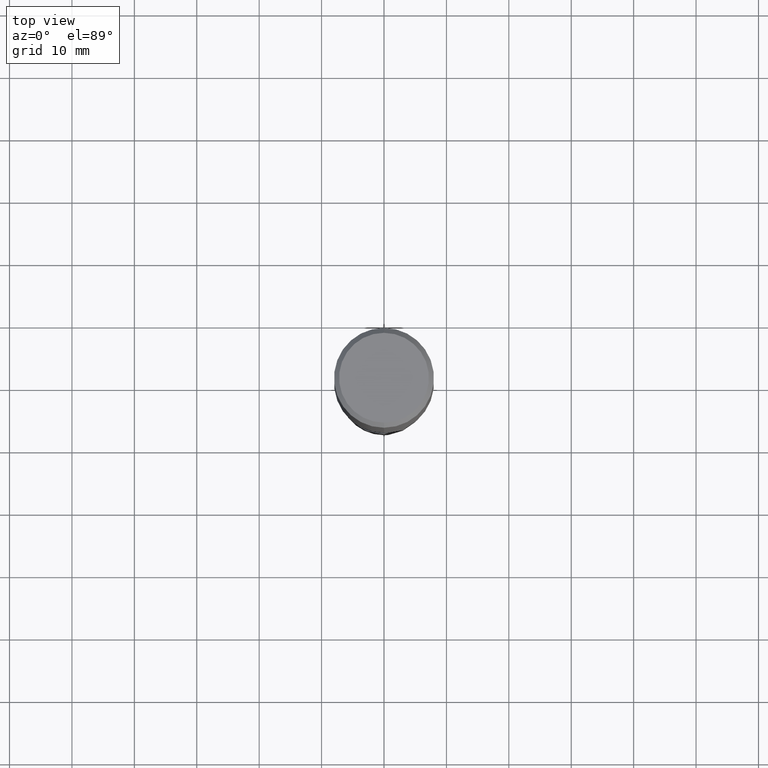
[diagram: clean part render]
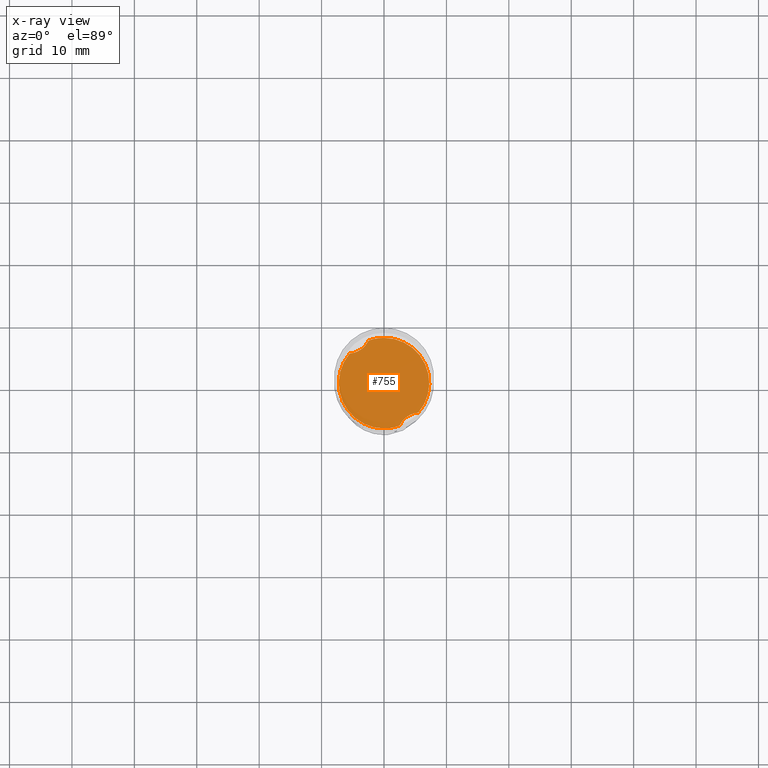
[diagram: x-ray — body ghosted, one internal face saturated and labeled with its STEP entity id]
A machine part, top view, then the same camera in x-ray: the body is ghosted and one INTERNAL B-rep face — a face not visible from any outside direction — is saturated and labeled: STEP entity #755.
In plain terms, the highlighted planar face has unit normal (-0, 0, 1).
Its self-contained STEP definition (entity closure, byte-faithful):
#291=EDGE_CURVE('',#661,#351,#822,.T.);
#351=VERTEX_POINT('',#890);
#367=EDGE_CURVE('',#541,#445,#907,.T.);
#445=VERTEX_POINT('',#994);
#515=EDGE_CURVE('',#547,#541,#1066,.T.);
#541=VERTEX_POINT('',#1092);
#547=VERTEX_POINT('',#1098);
#581=EDGE_CURVE('',#351,#585,#1134,.T.);
#585=VERTEX_POINT('',#1139);
#661=VERTEX_POINT('',#1222);
#755=ADVANCED_FACE('',(#1328),#1329,.T.);
#771=EDGE_CURVE('',#661,#445,#1347,.T.);
#783=EDGE_CURVE('',#547,#585,#1360,.T.);
#822=CIRCLE('',#1394,7.2499);
#890=CARTESIAN_POINT('',(-8.90454567294694E-016,7.2499,-50.0));
#907=CIRCLE('',#1839,7.2499);
#994=CARTESIAN_POINT('',(-5.49453423075707,4.72981433008092,-50.0));
#1066=CIRCLE('',#3031,7.2499);
#1092=CARTESIAN_POINT('',(8.9218930653872E-016,-7.2499,-50.0));
#1098=CARTESIAN_POINT('',(2.46754710439141,-6.81705664474116,-50.0));
#1134=CIRCLE('',#3524,7.2499);
#1139=CARTESIAN_POINT('',(5.49453423075706,-4.72981433008093,-50.0));
#1222=CARTESIAN_POINT('',(-2.46754710439139,6.81705664474116,-50.0));
#1328=FACE_OUTER_BOUND('',#5096,.T.);
#1329=PLANE('',#5097);
#1347=B_SPLINE_CURVE_WITH_KNOTS('',3,(#5122,#5123,#5124,#5125,#5126,#5127,#5128,#5129,#5130,#5131),.UNSPECIFIED.,.F.,.F.,(4,2,2,2,4),(0.0,1.57088891277895,3.00891111603402,4.46224382855093,6.24218715780073),.UNSPECIFIED.);
#1360=B_SPLINE_CURVE_WITH_KNOTS('',3,(#5207,#5208,#5209,#5210,#5211,#5212,#5213,#5214,#5215,#5216),.UNSPECIFIED.,.F.,.F.,(4,2,2,2,4),(0.0,1.57088891277877,3.00891111603375,4.46224382855063,6.24218715780032),.UNSPECIFIED.);
#1394=AXIS2_PLACEMENT_3D('',#5273,#5274,#5275);
#1839=AXIS2_PLACEMENT_3D('',#5382,#5383,#5384);
#3031=AXIS2_PLACEMENT_3D('',#5555,#5556,#5557);
#3524=AXIS2_PLACEMENT_3D('',#5591,#5592,#5593);
#5096=EDGE_LOOP('',(#5823,#5824,#5825,#5826,#5827,#5828));
#5097=AXIS2_PLACEMENT_3D('',#5829,#5830,#5831);
#5122=CARTESIAN_POINT('',(-2.26969057634829,7.29989999999999,-50.0));
#5123=CARTESIAN_POINT('',(-2.43802695326549,6.80406649813455,-50.0));
#5124=CARTESIAN_POINT('',(-2.69355009361567,6.34621721197536,-49.9999999999809));
#5125=CARTESIAN_POINT('',(-3.35524042555244,5.5953522103201,-49.9999999999809));
#5126=CARTESIAN_POINT('',(-3.73542758259822,5.30500826998966,-50.0000000000011));
#5127=CARTESIAN_POINT('',(-4.59946769406047,4.8835847086815,-50.0000000000011));
#5128=CARTESIAN_POINT('',(-5.068943879213,4.76165457978957,-50.0000000000001));
#5129=CARTESIAN_POINT('',(-6.14215952014459,4.68035265331167,-50.0000000000001));
#5130=CARTESIAN_POINT('',(-6.73532929104365,4.76446018138352,-50.0));
#5131=CARTESIAN_POINT('',(-7.2999,4.9501105978611,-50.0));
#5207=CARTESIAN_POINT('',(2.2696905763483,-7.2999,-50.0));
#5208=CARTESIAN_POINT('',(2.43802695326549,-6.80406649813462,-50.0));
#5209=CARTESIAN_POINT('',(2.69355009361566,-6.34621721197538,-49.9999999999809));
#5210=CARTESIAN_POINT('',(3.35524042555248,-5.59535221032006,-49.9999999999809));
#5211=CARTESIAN_POINT('',(3.73542758259825,-5.30500826998966,-50.0000000000011));
#5212=CARTESIAN_POINT('',(4.59946769406048,-4.88358470868151,-50.0000000000011));
#5213=CARTESIAN_POINT('',(5.06894387921301,-4.76165457978958,-50.0000000000001));
#5214=CARTESIAN_POINT('',(6.14215952014458,-4.68035265331168,-50.0000000000001));
#5215=CARTESIAN_POINT('',(6.73532929104362,-4.76446018138351,-50.0));
#5216=CARTESIAN_POINT('',(7.2999,-4.9501105978611,-50.0));
#5273=CARTESIAN_POINT('',(0.0,0.0,-50.0));
#5274=DIRECTION('',(0.0,0.0,-1.0));
#5275=DIRECTION('',(0.0,1.0,0.0));
#5382=CARTESIAN_POINT('',(0.0,0.0,-50.0));
#5383=DIRECTION('',(0.0,0.0,-1.0));
#5384=DIRECTION('',(0.0,1.0,0.0));
#5555=CARTESIAN_POINT('',(0.0,0.0,-50.0));
#5556=DIRECTION('',(0.0,0.0,-1.0));
#5557=DIRECTION('',(0.0,1.0,0.0));
#5591=CARTESIAN_POINT('',(0.0,0.0,-50.0));
#5592=DIRECTION('',(0.0,0.0,-1.0));
#5593=DIRECTION('',(0.0,1.0,0.0));
#5823=ORIENTED_EDGE('',*,*,#783,.T.);
#5824=ORIENTED_EDGE('',*,*,#581,.F.);
#5825=ORIENTED_EDGE('',*,*,#291,.F.);
#5826=ORIENTED_EDGE('',*,*,#771,.T.);
#5827=ORIENTED_EDGE('',*,*,#367,.F.);
#5828=ORIENTED_EDGE('',*,*,#515,.F.);
#5829=CARTESIAN_POINT('',(0.0,3.62495,-50.0));
#5830=DIRECTION('',(-0.0,0.0,1.0));
#5831=DIRECTION('',(0.0,-1.0,0.0));